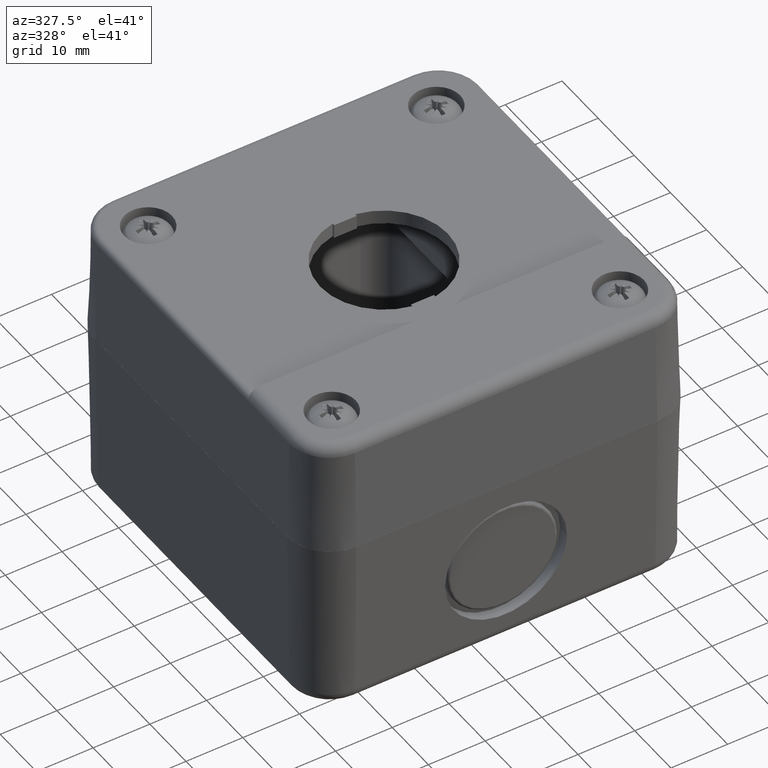
[diagram: clean part render]
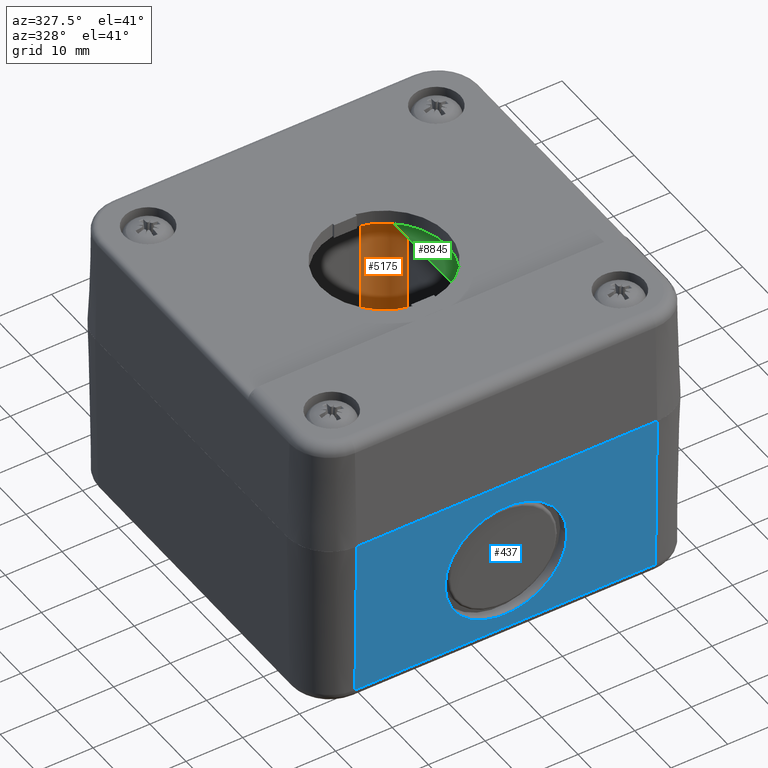
[diagram: same view with three faces highlighted in distinct colors, each labeled with its STEP entity id]
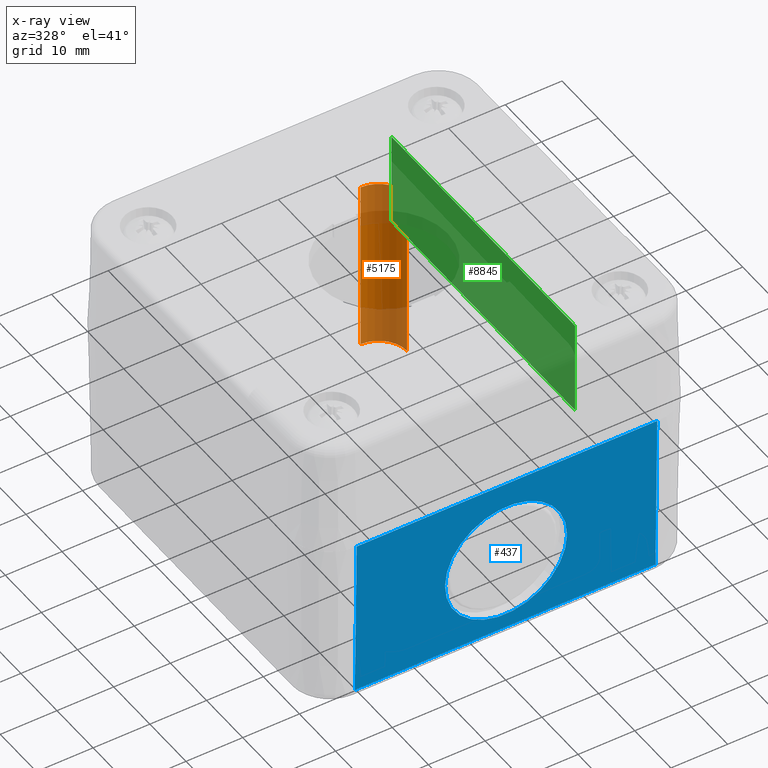
[diagram: x-ray of the same camera — body ghosted, the three highlighted faces saturated]
A machine part, auxiliary view with three faces highlighted in distinct colors.
The next image is the same camera in x-ray (body ghosted, the three faces saturated) — at least one of them is partly hidden behind the body in this view.
Their STEP definitions:

[orange] entity #5175 — the highlighted cylindrical surface (edge-blend (fillet) strip) has radius 5 mm, axis along (0, 0, -1).
#1984=CARTESIAN_POINT('',(4.752450702821482,36.172435103463613,3.100000000000009));
#1985=VERTEX_POINT('',#1984);
#1992=CARTESIAN_POINT('',(-0.247549297178519,41.172435103463613,3.100000000000009));
#1993=VERTEX_POINT('',#1992);
#1994=CARTESIAN_POINT('',(-0.247549297178519,36.172435103463613,3.100000000000005));
#1995=DIRECTION('',(0.0,0.0,1.0));
#1996=DIRECTION('',(1.0,0.0,0.0));
#1997=AXIS2_PLACEMENT_3D('',#1994,#1995,#1996);
#1998=CIRCLE('',#1997,5.0);
#1999=EDGE_CURVE('',#1985,#1993,#1998,.T.);
#5009=CARTESIAN_POINT('',(-0.247549297178519,41.172435103463613,34.0));
#5010=VERTEX_POINT('',#5009);
#5017=CARTESIAN_POINT('',(4.752450702821482,36.172435103463613,34.0));
#5018=VERTEX_POINT('',#5017);
#5019=CARTESIAN_POINT('',(-0.247549297178519,36.172435103463613,34.000000000000014));
#5020=DIRECTION('',(0.0,0.0,-1.0));
#5021=DIRECTION('',(-1.0,0.0,0.0));
#5022=AXIS2_PLACEMENT_3D('',#5019,#5020,#5021);
#5023=CIRCLE('',#5022,5.0);
#5024=EDGE_CURVE('',#5010,#5018,#5023,.T.);
#5150=CARTESIAN_POINT('',(4.752450702821482,36.172435103463613,34.0));
#5151=DIRECTION('',(0.0,0.0,-1.0));
#5152=VECTOR('',#5151,30.899999999999991);
#5153=LINE('',#5150,#5152);
#5154=EDGE_CURVE('',#5018,#1985,#5153,.T.);
#5159=CARTESIAN_POINT('',(-0.247549297178519,36.172435103463613,30.600000000000005));
#5160=DIRECTION('',(0.0,0.0,-1.0));
#5161=DIRECTION('',(1.0,0.0,0.0));
#5162=AXIS2_PLACEMENT_3D('',#5159,#5160,#5161);
#5163=CYLINDRICAL_SURFACE('',#5162,5.0);
#5164=ORIENTED_EDGE('',*,*,#1999,.F.);
#5165=ORIENTED_EDGE('',*,*,#5154,.F.);
#5166=ORIENTED_EDGE('',*,*,#5024,.F.);
#5167=CARTESIAN_POINT('',(-0.247549297178519,41.172435103463613,34.0));
#5168=DIRECTION('',(0.0,0.0,-1.0));
#5169=VECTOR('',#5168,30.899999999999991);
#5170=LINE('',#5167,#5169);
#5171=EDGE_CURVE('',#5010,#1993,#5170,.T.);
#5172=ORIENTED_EDGE('',*,*,#5171,.T.);
#5173=EDGE_LOOP('',(#5164,#5165,#5166,#5172));
#5174=FACE_OUTER_BOUND('',#5173,.T.);
#5175=ADVANCED_FACE('',(#5174),#5163,.F.);

[blue] entity #437 — the highlighted planar face has unit normal (0, -0.9998, -0.0175).
#154=CARTESIAN_POINT('',(10.627450702821495,-23.361865760617803,1.965095187125425));
#155=VERTEX_POINT('',#154);
#222=CARTESIAN_POINT('',(-42.372549297178494,-23.361865760617832,1.965095187125433));
#223=VERTEX_POINT('',#222);
#240=CARTESIAN_POINT('',(10.627450702821495,-23.361865760617803,1.965095187125425));
#241=DIRECTION('',(-1.0,0.0,0.0));
#242=VECTOR('',#241,52.999999999999986);
#243=LINE('',#240,#242);
#244=EDGE_CURVE('',#155,#223,#243,.T.);
#377=CARTESIAN_POINT('',(-42.372549297178494,-23.861689883339888,30.600000000000005));
#378=VERTEX_POINT('',#377);
#379=CARTESIAN_POINT('',(-42.372549297178494,-23.361865760617832,1.965095187125433));
#380=DIRECTION('',(0.0,-0.017452406437284,0.999847695156391));
#381=VECTOR('',#380,28.639266711912203);
#382=LINE('',#379,#381);
#383=EDGE_CURVE('',#223,#378,#382,.T.);
#403=CARTESIAN_POINT('',(10.627450702821495,-23.327564896536401,0.0));
#404=DIRECTION('',(5.026659E-016,-0.999847695156391,-0.017452406437283));
#405=DIRECTION('',(1.0,0.0,0.0));
#406=AXIS2_PLACEMENT_3D('',#403,#404,#405);
#407=PLANE('',#406);
#408=ORIENTED_EDGE('',*,*,#244,.F.);
#409=CARTESIAN_POINT('',(10.627450702821495,-23.861689883339857,30.600000000000005));
#410=VERTEX_POINT('',#409);
#411=CARTESIAN_POINT('',(10.627450702821495,-23.361865760617803,1.965095187125425));
#412=DIRECTION('',(0.0,-0.017452406437283,0.999847695156391));
#413=VECTOR('',#412,28.639266711912207);
#414=LINE('',#411,#413);
#415=EDGE_CURVE('',#155,#410,#414,.T.);
#416=ORIENTED_EDGE('',*,*,#415,.T.);
#417=CARTESIAN_POINT('',(10.627450702821495,-23.861689883339857,30.600000000000005));
#418=DIRECTION('',(-1.0,0.0,0.0));
#419=VECTOR('',#418,52.999999999999986);
#420=LINE('',#417,#419);
#421=EDGE_CURVE('',#410,#378,#420,.T.);
#422=ORIENTED_EDGE('',*,*,#421,.T.);
#423=ORIENTED_EDGE('',*,*,#383,.F.);
#424=EDGE_LOOP('',(#408,#416,#422,#423));
#425=FACE_OUTER_BOUND('',#424,.T.);
#426=CARTESIAN_POINT('',(-5.122549297178500,-23.594630346042941,15.300169355130677));
#427=VERTEX_POINT('',#426);
#428=CARTESIAN_POINT('',(-15.872549297178500,-23.594630346042948,15.300169355130675));
#429=DIRECTION('',(0.0,0.999847695156391,0.017452406437283));
#430=DIRECTION('',(-1.0,0.0,0.0));
#431=AXIS2_PLACEMENT_3D('',#428,#429,#430);
#432=CIRCLE('',#431,10.750000000000000);
#433=EDGE_CURVE('',#427,#427,#432,.T.);
#434=ORIENTED_EDGE('',*,*,#433,.T.);
#435=EDGE_LOOP('',(#434));
#436=FACE_BOUND('',#435,.T.);
#437=ADVANCED_FACE('',(#425,#436),#407,.T.);

[green] entity #8845 — the highlighted planar face has unit normal (1, -0, -0).
#8787=CARTESIAN_POINT('',(16.566394415944849,-27.638618122439304,3.399999999999999));
#8788=VERTEX_POINT('',#8787);
#8797=CARTESIAN_POINT('',(16.566394415944849,-27.638618122439304,20.0));
#8798=VERTEX_POINT('',#8797);
#8806=CARTESIAN_POINT('',(16.566394415944849,-27.638618122439304,20.0));
#8807=DIRECTION('',(0.0,0.0,-1.0));
#8808=VECTOR('',#8807,16.600000000000001);
#8809=LINE('',#8806,#8808);
#8810=EDGE_CURVE('',#8798,#8788,#8809,.T.);
#8815=CARTESIAN_POINT('',(16.566394415944849,-27.638618122439304,20.0));
#8816=DIRECTION('',(1.0,0.0,0.0));
#8817=DIRECTION('',(0.0,0.0,-1.0));
#8818=AXIS2_PLACEMENT_3D('',#8815,#8816,#8817);
#8819=PLANE('',#8818);
#8820=CARTESIAN_POINT('',(16.566394415944846,23.208818740328169,3.399999999999999));
#8821=VERTEX_POINT('',#8820);
#8822=CARTESIAN_POINT('',(16.566394415944849,-27.638618122439304,3.399999999999999));
#8823=DIRECTION('',(0.0,1.0,0.0));
#8824=VECTOR('',#8823,50.847436862767474);
#8825=LINE('',#8822,#8824);
#8826=EDGE_CURVE('',#8788,#8821,#8825,.T.);
#8827=ORIENTED_EDGE('',*,*,#8826,.F.);
#8828=ORIENTED_EDGE('',*,*,#8810,.F.);
#8829=CARTESIAN_POINT('',(16.566394415944846,23.208818740328169,20.0));
#8830=VERTEX_POINT('',#8829);
#8831=CARTESIAN_POINT('',(16.566394415944846,23.208818740328169,20.0));
#8832=DIRECTION('',(0.0,-1.0,0.0));
#8833=VECTOR('',#8832,50.847436862767474);
#8834=LINE('',#8831,#8833);
#8835=EDGE_CURVE('',#8830,#8798,#8834,.T.);
#8836=ORIENTED_EDGE('',*,*,#8835,.F.);
#8837=CARTESIAN_POINT('',(16.566394415944846,23.208818740328169,20.0));
#8838=DIRECTION('',(0.0,0.0,-1.0));
#8839=VECTOR('',#8838,16.600000000000001);
#8840=LINE('',#8837,#8839);
#8841=EDGE_CURVE('',#8830,#8821,#8840,.T.);
#8842=ORIENTED_EDGE('',*,*,#8841,.T.);
#8843=EDGE_LOOP('',(#8827,#8828,#8836,#8842));
#8844=FACE_OUTER_BOUND('',#8843,.T.);
#8845=ADVANCED_FACE('',(#8844),#8819,.F.);